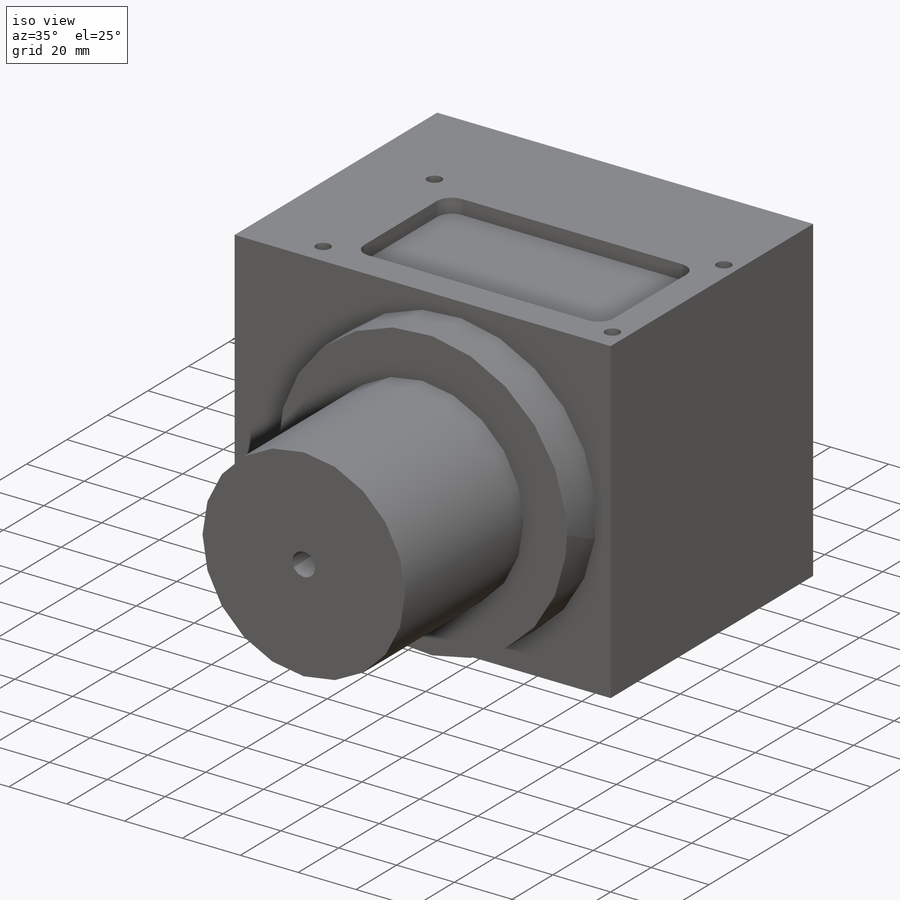
[diagram: iso view]
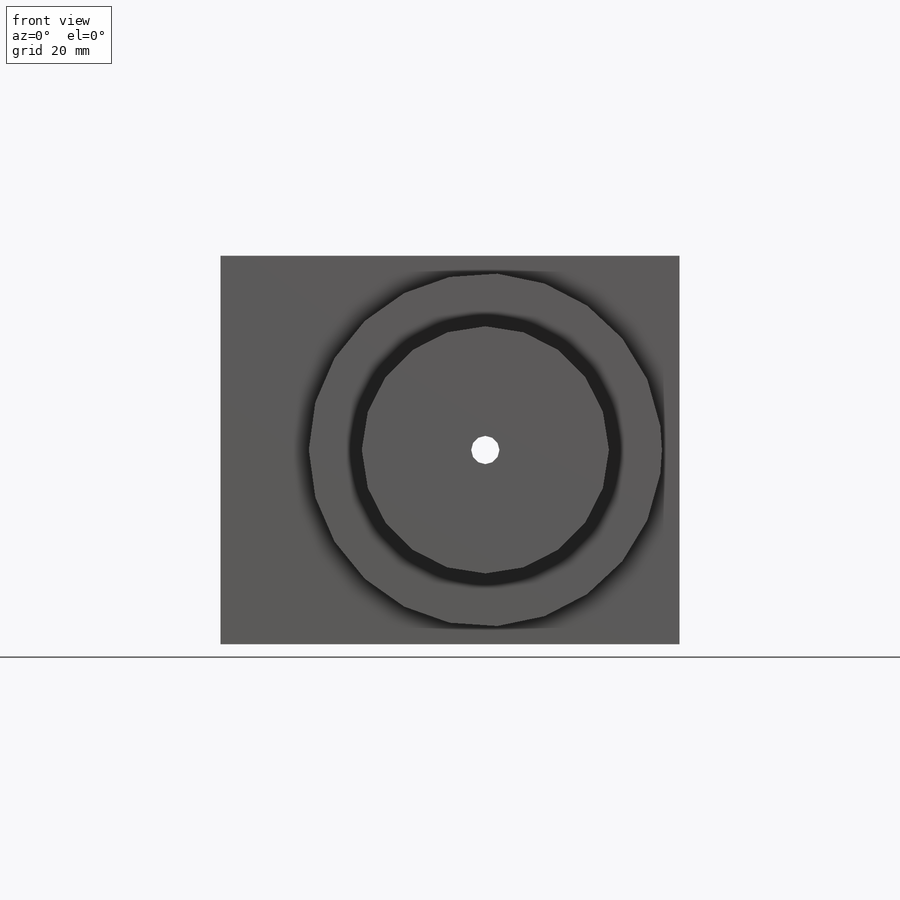
[diagram: front view]
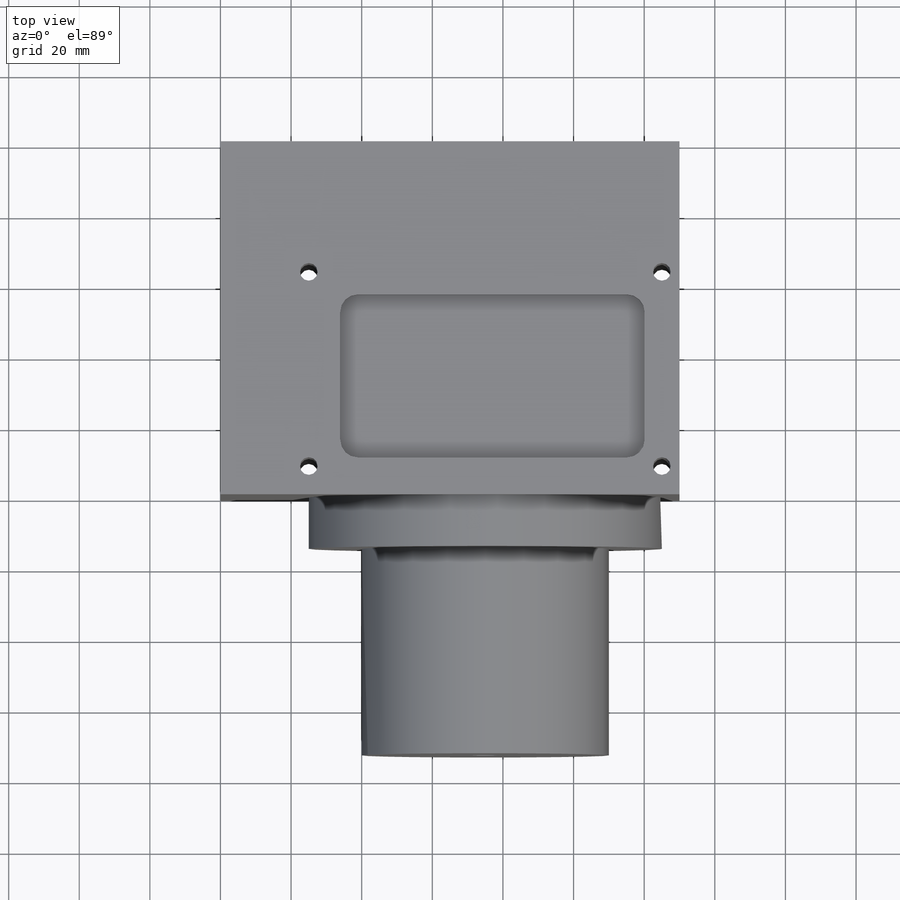
[diagram: top view]
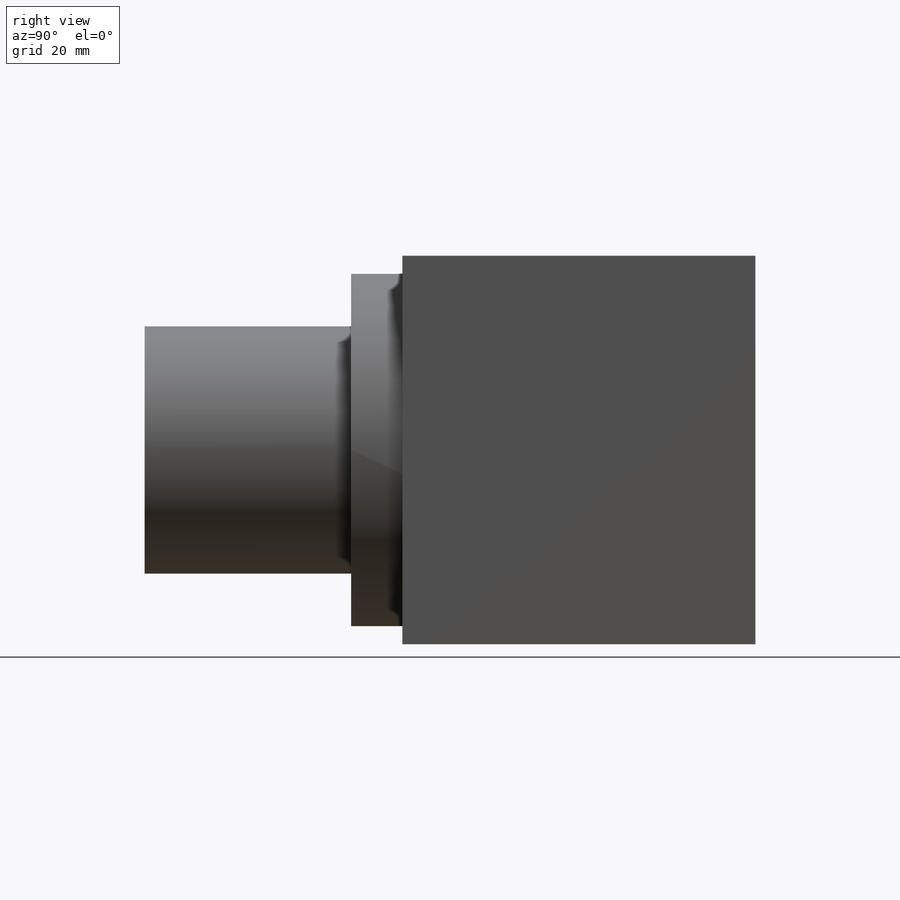
[diagram: right view]
SOLIDWORKS PART (.sldprt)
format: sldprt  version: not decoded by parser v0  size: 282,112 bytes
history: native  units: mm
features: sketch x8, cut_extrude x5, extrude x3, material x1 (+11 scaffold rows collapsed)
feature tree (28):
  scaffold x11  (default folders/planes/origin — collapsed)
  material  "Material <not specified>"
  sketch  "Sketch1"  dims[D1=100.0mm]
  extrude  "Boss-Extrude1"  Depth=110mm
  sketch  "Sketch2"  dims[D3=5.0mm D1=43.4mm D2=33.9mm]
  cut_extrude  "Cut-Extrude1"  Depth=5mm
  sketch  "Sketch3"
  cut_extrude  "Cut-Extrude2"  Depth=90mm
  sketch  "Sketch4"  dims[c1.D1=~2.202987mm c1.D3=20.0mm c2.D1=2.0mm c2.D2=2.0mm]
  cut_extrude  "Cut-Extrude3"  Depth=10mm
  sketch  "Sketch6"  dims[c1.D3=10.0mm c1.D1=3.0mm c1.D2=3.0mm c2.D3=104.0mm]
  cut_extrude  "Cut-Extrude4"  Depth=20mm
  sketch  "Sketch8"  dims[D1=~32.387728mm]
  cut_extrude  "Cut-Extrude5"  Depth=10mm
  sketch  "Sketch9"  dims[D1=~50.845212mm]
  extrude  "Boss-Extrude3"  Depth=14.5mm
  sketch  "Sketch10"  dims[D1=~4.000558mm]
  extrude  "Boss-Extrude4"  Depth=58.5mm
decode coverage: 15 of 16 modeling features carry decoded parameters
note: ~ marks probable driven/reference dimensions
note: suppression state not decoded; provenance and decode notes live in map.json
